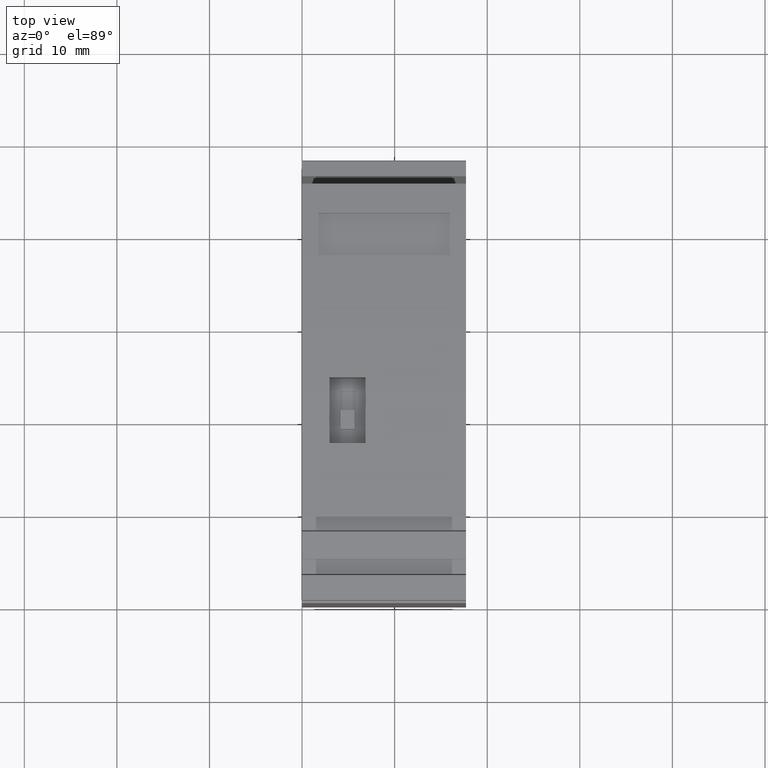
[diagram: clean part render]
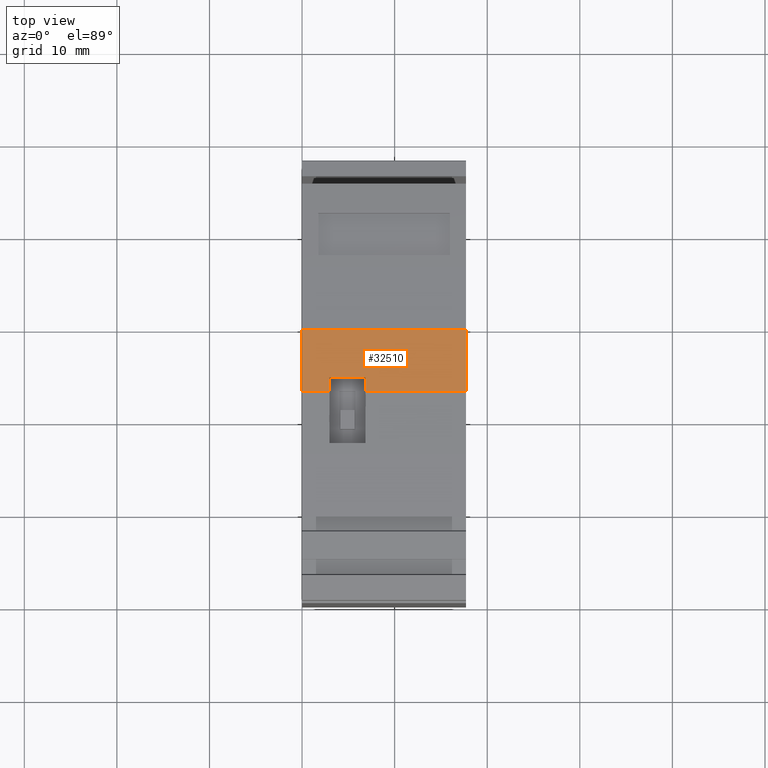
[diagram: same view with one face highlighted and labeled with its STEP entity id]
A machine part, top view. The second image highlights one B-rep face of the part: STEP entity #32510.
In plain terms, the highlighted planar face has unit normal (-0, 0.0168, 0.9999).
Its self-contained STEP definition (entity closure, byte-faithful):
#3660=CARTESIAN_POINT('',(139.153019908186,83.7500129560415,
7.27500000328213));
#3670=VERTEX_POINT('',#3660);
#3700=CARTESIAN_POINT('',(172.092709102795,83.1958737421648,
7.27500000328213));
#3710=DIRECTION('',(0.999858526007718,-0.0168204628257921,
4.38486263458558E-35));
#3720=VECTOR('',#3710,1.);
#3730=LINE('',#3700,#3720);
#3740=CARTESIAN_POINT('',(145.880253260324,83.6368417667415,
7.27500000328213));
#3750=VERTEX_POINT('',#3740);
#3760=EDGE_CURVE('',#3670,#3750,#3730,.T.);
#11910=CARTESIAN_POINT('',(145.880253259546,83.6368417667415,
-10.424999998353));
#11920=VERTEX_POINT('',#11910);
#11950=CARTESIAN_POINT('',(172.092709102795,83.1958737421517,
-10.4249999995053));
#11960=DIRECTION('',(0.999858526007718,-0.0168204628257921,
-4.39546159886062E-11));
#11970=VECTOR('',#11960,1.);
#11980=LINE('',#11950,#11970);
#11990=CARTESIAN_POINT('',(139.153019907408,83.7500129560415,
-10.4249999980573));
#12000=VERTEX_POINT('',#11990);
#12010=EDGE_CURVE('',#12000,#11920,#11980,.T.);
#16770=CARTESIAN_POINT('',(140.70488954126,83.7239060971185,
-3.56486605570185));
#16780=VERTEX_POINT('',#16770);
#16810=CARTESIAN_POINT('',(131.99143514044,83.8704911709271,
-3.57442682697157));
#16820=CARTESIAN_POINT('',(132.792590048574,83.8570134678327,
-3.57276021591323));
#16830=CARTESIAN_POINT('',(133.593744956708,83.8435357647383,
-3.57109360485488));
#16840=CARTESIAN_POINT('',(135.236666633213,83.815897151608,
-3.56767589948197));
#16850=CARTESIAN_POINT('',(136.157885381417,83.8003996334036,
-3.56622446026602));
#16860=CARTESIAN_POINT('',(137.149712851133,83.7837142757755,
-3.56535627292419));
#16870=CARTESIAN_POINT('',(138.152309223475,83.7668477545912,
-3.56447865911935));
#16880=CARTESIAN_POINT('',(139.074865587044,83.7513277338938,
-3.56433028580649));
#16890=CARTESIAN_POINT('',(140.706705704311,83.7238755440928,
-3.5648666526535));
#16900=CARTESIAN_POINT('',(141.507862302181,83.7103978125722,
-3.56512998349934));
#16910=CARTESIAN_POINT('',(142.30901890005,83.6969200810516,
-3.56539331434518));
#16920=B_SPLINE_CURVE_WITH_KNOTS('',3,(#16810,#16820,#16830,#16840,
#16850,#16860,#16870,#16880,#16890,#16900,#16910),.UNSPECIFIED.,.F.,.F.,
(4,2,3,2,4),(-2.62227830681453,0.,2.75520590797918,5.51143232530145,
8.16968775940733),.UNSPECIFIED.);
#16930=CARTESIAN_POINT('',(139.153019907708,83.7500129560415,
-3.56447959881538));
#16940=VERTEX_POINT('',#16930);
#16950=EDGE_CURVE('',#16940,#16780,#16920,.T.);
#17280=CARTESIAN_POINT('',(139.15301990792,83.7500129560421,
0.425000002241945));
#17290=DIRECTION('',(-4.39608349722675E-11,4.7506517970926E-33,-1.));
#17300=VECTOR('',#17290,1.);
#17310=LINE('',#17280,#17300);
#17320=EDGE_CURVE('',#3670,#16940,#17310,.T.);
#17370=CARTESIAN_POINT('',(139.153019907536,83.7500129560415,
-7.48552040462472));
#17380=VERTEX_POINT('',#17370);
#17390=EDGE_CURVE('',#17380,#12000,#17310,.T.);
#22290=CARTESIAN_POINT('',(140.704889545423,83.7239060970463,
-7.48513394560683));
#22300=VERTEX_POINT('',#22290);
#22330=CARTESIAN_POINT('',(140.704889545564,83.7239060970418,
-9.08546414080126));
#22340=CARTESIAN_POINT('',(140.704889545493,83.7239060970436,
-8.28510414080126));
#22350=CARTESIAN_POINT('',(140.704889545423,83.7239060970454,
-7.48474414080126));
#22360=CARTESIAN_POINT('',(140.704889545318,83.723906097048,
-6.29792276264602));
#22370=CARTESIAN_POINT('',(140.70488937815,83.7239060998606,
-5.9114613844908));
#22380=CARTESIAN_POINT('',(140.704889378116,83.7239060998614,
-5.52500000633557));
#22390=CARTESIAN_POINT('',(140.704889378082,83.7239060998623,
-5.13853863101927));
#22400=CARTESIAN_POINT('',(140.704889541364,83.7239060971157,
-4.75207725570299));
#22410=CARTESIAN_POINT('',(140.70488954126,83.7239060971183,
-3.56525588038669));
#22420=CARTESIAN_POINT('',(140.704889541189,83.7239060971201,
-2.76489588038669));
#22430=CARTESIAN_POINT('',(140.704889541119,83.7239060971219,
-1.96453588038669));
#22440=B_SPLINE_CURVE_WITH_KNOTS('',3,(#22330,#22340,#22350,#22360,
#22370,#22380,#22390,#22400,#22410,#22420,#22430),.UNSPECIFIED.,.F.,.F.,
(4,2,3,2,4),(-2.40108,0.,1.1593841344657,2.31876826041459,
4.71984826041459),.UNSPECIFIED.);
#22450=EDGE_CURVE('',#22300,#16780,#22440,.T.);
#22730=CARTESIAN_POINT('',(131.991435194061,83.8704911700222,
-7.47557318011471));
#22740=CARTESIAN_POINT('',(132.792590102194,83.8570134669278,
-7.47723979117283));
#22750=CARTESIAN_POINT('',(133.593745010328,83.8435357638333,
-7.47890640223095));
#22760=CARTESIAN_POINT('',(135.238493620237,83.8158664164896,
-7.48232790810114));
#22770=CARTESIAN_POINT('',(136.159577714327,83.8003711635502,
-7.48377702527566));
#22780=CARTESIAN_POINT('',(137.149712874488,83.7837142753797,
-7.48464373125905));
#22790=CARTESIAN_POINT('',(138.153529546198,83.7668272252909,
-7.48552241323159));
#22800=CARTESIAN_POINT('',(139.076200582176,83.7513052754776,
-7.48566927670668));
#22810=CARTESIAN_POINT('',(140.706705743959,83.7238755434229,
-7.48513334864352));
#22820=CARTESIAN_POINT('',(141.507862341829,83.7103978119023,
-7.48487001779744));
#22830=CARTESIAN_POINT('',(142.309018939698,83.6969200803817,
-7.48460668695136));
#22840=B_SPLINE_CURVE_WITH_KNOTS('',3,(#22730,#22740,#22750,#22760,
#22770,#22780,#22790,#22800,#22810,#22820,#22830),.UNSPECIFIED.,.F.,.F.,
(4,2,3,2,4),(-2.61659932642542,0.,2.75520587770478,5.51143231132242,
8.17396660461665),.UNSPECIFIED.);
#22850=EDGE_CURVE('',#17380,#22300,#22840,.T.);
#32180=CARTESIAN_POINT('',(145.880253260024,83.6368417667415,
0.425000002241946));
#32190=DIRECTION('',(4.39608349722675E-11,1.87617321935644E-28,1.));
#32200=VECTOR('',#32190,1.);
#32210=LINE('',#32180,#32200);
#32220=EDGE_CURVE('',#11920,#3750,#32210,.T.);
#32360=CARTESIAN_POINT('',(139.153019908621,83.7500129560278,
-1.34499999805728));
#32370=DIRECTION('',(0.0168204628257921,0.999858526007718,
-7.39441590441808E-13));
#32380=DIRECTION('',(-0.999858526007718,0.0168204628257921,
4.395461565744E-11));
#32390=AXIS2_PLACEMENT_3D('',#32360,#32370,#32380);
#32400=PLANE('',#32390);
#32410=ORIENTED_EDGE('',*,*,#22850,.T.);
#32420=ORIENTED_EDGE('',*,*,#17390,.F.);
#32430=ORIENTED_EDGE('',*,*,#12010,.F.);
#32440=ORIENTED_EDGE('',*,*,#32220,.F.);
#32450=ORIENTED_EDGE('',*,*,#3760,.T.);
#32460=ORIENTED_EDGE('',*,*,#17320,.F.);
#32470=ORIENTED_EDGE('',*,*,#16950,.F.);
#32480=ORIENTED_EDGE('',*,*,#22450,.T.);
#32490=EDGE_LOOP('',(#32480,#32470,#32460,#32450,#32440,#32430,#32420,
#32410));
#32500=FACE_OUTER_BOUND('',#32490,.T.);
#32510=ADVANCED_FACE('',(#32500),#32400,.T.);